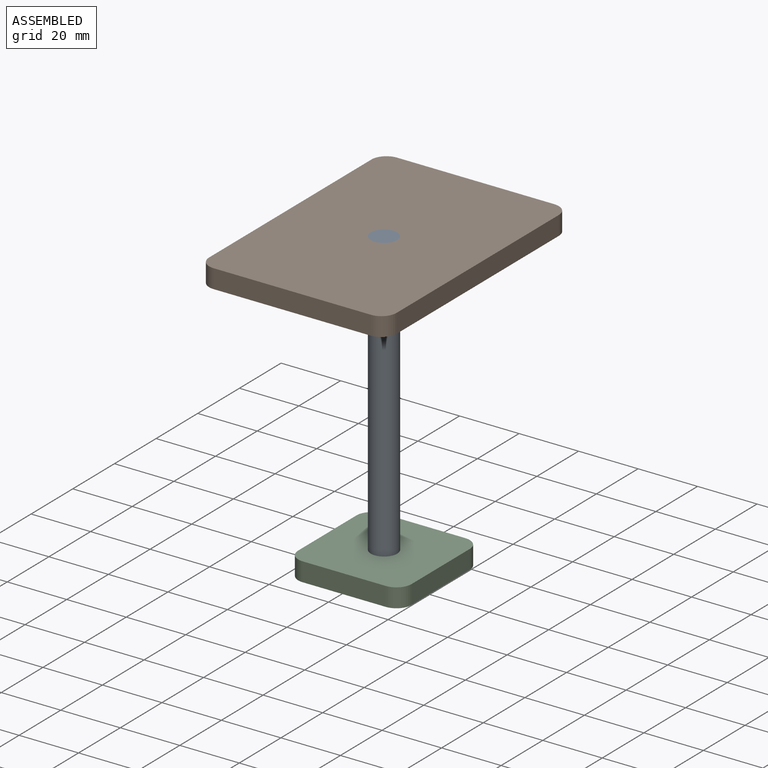
[diagram: assembled view]
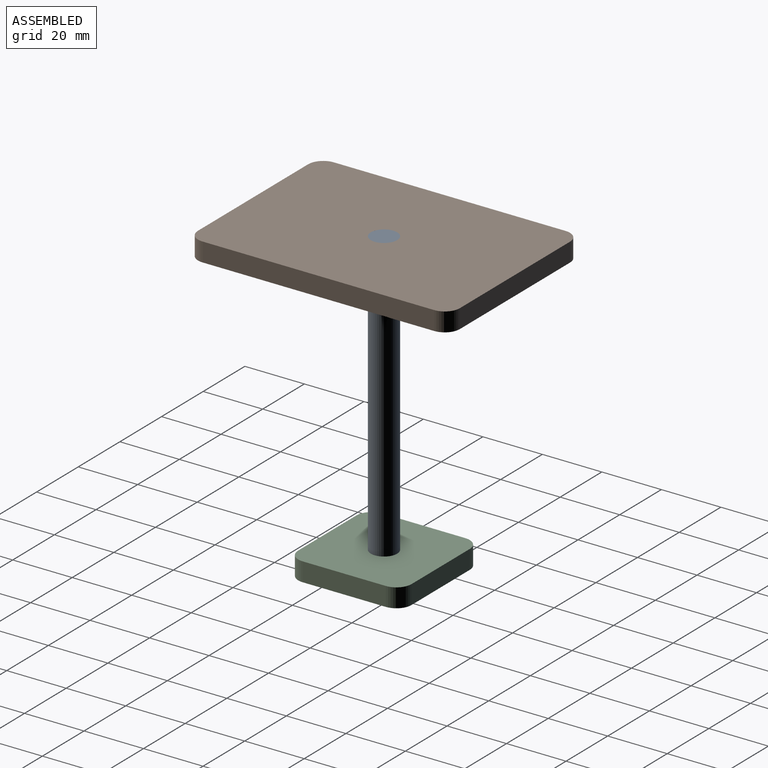
[diagram: assembled view, second angle]
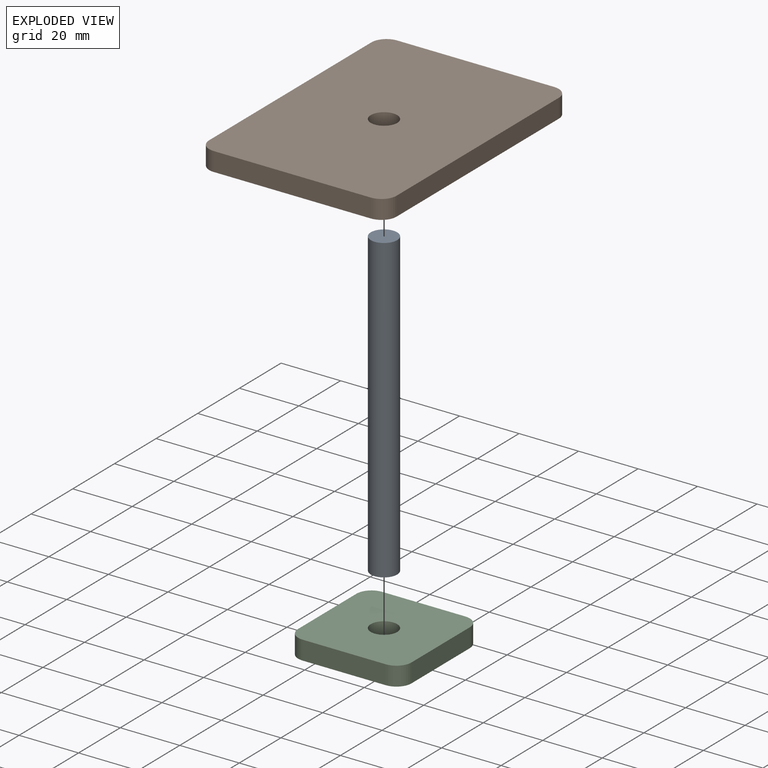
[diagram: exploded view]
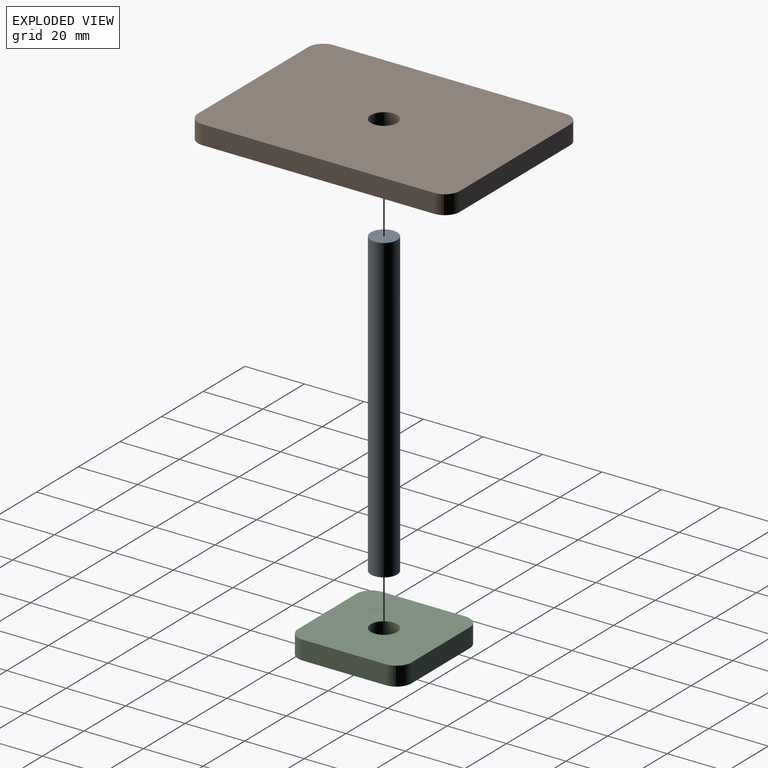
[diagram: exploded view, second angle]
ASSEMBLY  parts=3 mates=2
PART A: 3 faces, bbox 8.9x8.9x101.6 mm
  f0: cylinder r=4.45mm len=101.6mm, axis (0,0,-1), area 2837.6mm2, adj f1,f2
  f1: plane 8.89x8.89mm, normal (0,0,1), area 62.1mm2, adj f0
  f2: plane 8.89x8.89mm, normal (0,0,-1), area 62.1mm2, adj f0
PART B: 11 faces, bbox 63x88x6.4 mm
  f0: plane 52.84x6.35mm, normal (0,-1,0), area 335.5mm2, adj f4,f5,f6,f9
  f1: plane 77.84x6.35mm, normal (1,0,0), area 494.3mm2, adj f4,f5,f6,f7
  f2: plane 52.84x6.35mm, normal (0,1,0), area 335.5mm2, adj f4,f5,f7,f8
  f3: plane 77.84x6.35mm, normal (-1,0,0), area 494.3mm2, adj f4,f5,f8,f9
  f4: plane 88x63mm, normal (0,0,-1), area 5459.8mm2, adj f0,f1,f2,f3,f6,f7,f8,f9
  f5: plane 88x63mm, normal (0,0,1), area 5459.8mm2, adj f0,f1,f2,f3,f6,f7,f8,f9
  f6: cylinder r=5.08mm len=6.35mm, axis (0,0,-1), area 50.7mm2, adj f0,f1,f4,f5
  f7: cylinder r=5.08mm len=6.35mm, axis (0,0,1), area 50.7mm2, adj f1,f2,f4,f5
  f8: cylinder r=5.08mm len=6.35mm, axis (0,0,-1), area 50.7mm2, adj f2,f3,f4,f5
  f9: cylinder r=5.08mm len=6.35mm, axis (0,0,1), area 50.7mm2, adj f0,f3,f4,f5
  f10: cylinder r=4.45mm len=8.89mm, axis (0,0,1), area 177.3mm2, adj f4,f5
PART C: 11 faces, bbox 38.1x38.1x6.4 mm
  f0: plane 27.94x6.35mm, normal (0,-1,0), area 177.4mm2, adj f4,f5,f6,f9
  f1: plane 27.94x6.35mm, normal (1,0,0), area 177.4mm2, adj f4,f5,f6,f7
  f2: plane 27.94x6.35mm, normal (0,1,0), area 177.4mm2, adj f4,f5,f7,f8
  f3: plane 27.94x6.35mm, normal (-1,0,0), area 177.4mm2, adj f4,f5,f8,f9
  f4: plane 38.1x38.1mm, normal (0,0,1), area 1367.4mm2, adj f0,f1,f2,f3,f6,f7,f8,f9
  f5: plane 38.1x38.1mm, normal (0,0,-1), area 1367.4mm2, adj f0,f1,f2,f3,f6,f7,f8,f9
  f6: cylinder r=5.08mm len=6.35mm, axis (0,0,1), area 50.7mm2, adj f0,f1,f4,f5
  f7: cylinder r=5.08mm len=6.35mm, axis (0,0,-1), area 50.7mm2, adj f1,f2,f4,f5
  f8: cylinder r=5.08mm len=6.35mm, axis (0,0,1), area 50.7mm2, adj f2,f3,f4,f5
  f9: cylinder r=5.08mm len=6.35mm, axis (0,0,-1), area 50.7mm2, adj f0,f3,f4,f5
  f10: cylinder r=4.45mm len=8.89mm, axis (0,0,1), area 177.3mm2, adj f4,f5
PLACE A t=(-7.2,-0.22,-3.56)mm
PLACE B rot(axis=(1,0,0),180deg) t=(-7.2,-0.22,91.69)mm
PLACE C t=(-7.2,-0.22,-3.56)mm
MATE fastened C.f10 <-> A.f0  axis (0,0,-1) through (-7.2,-0.22,-3.56)mm
MATE fastened B.f10 <-> A.f0  axis (0,0,1) through (-7.2,-0.22,98.04)mm
